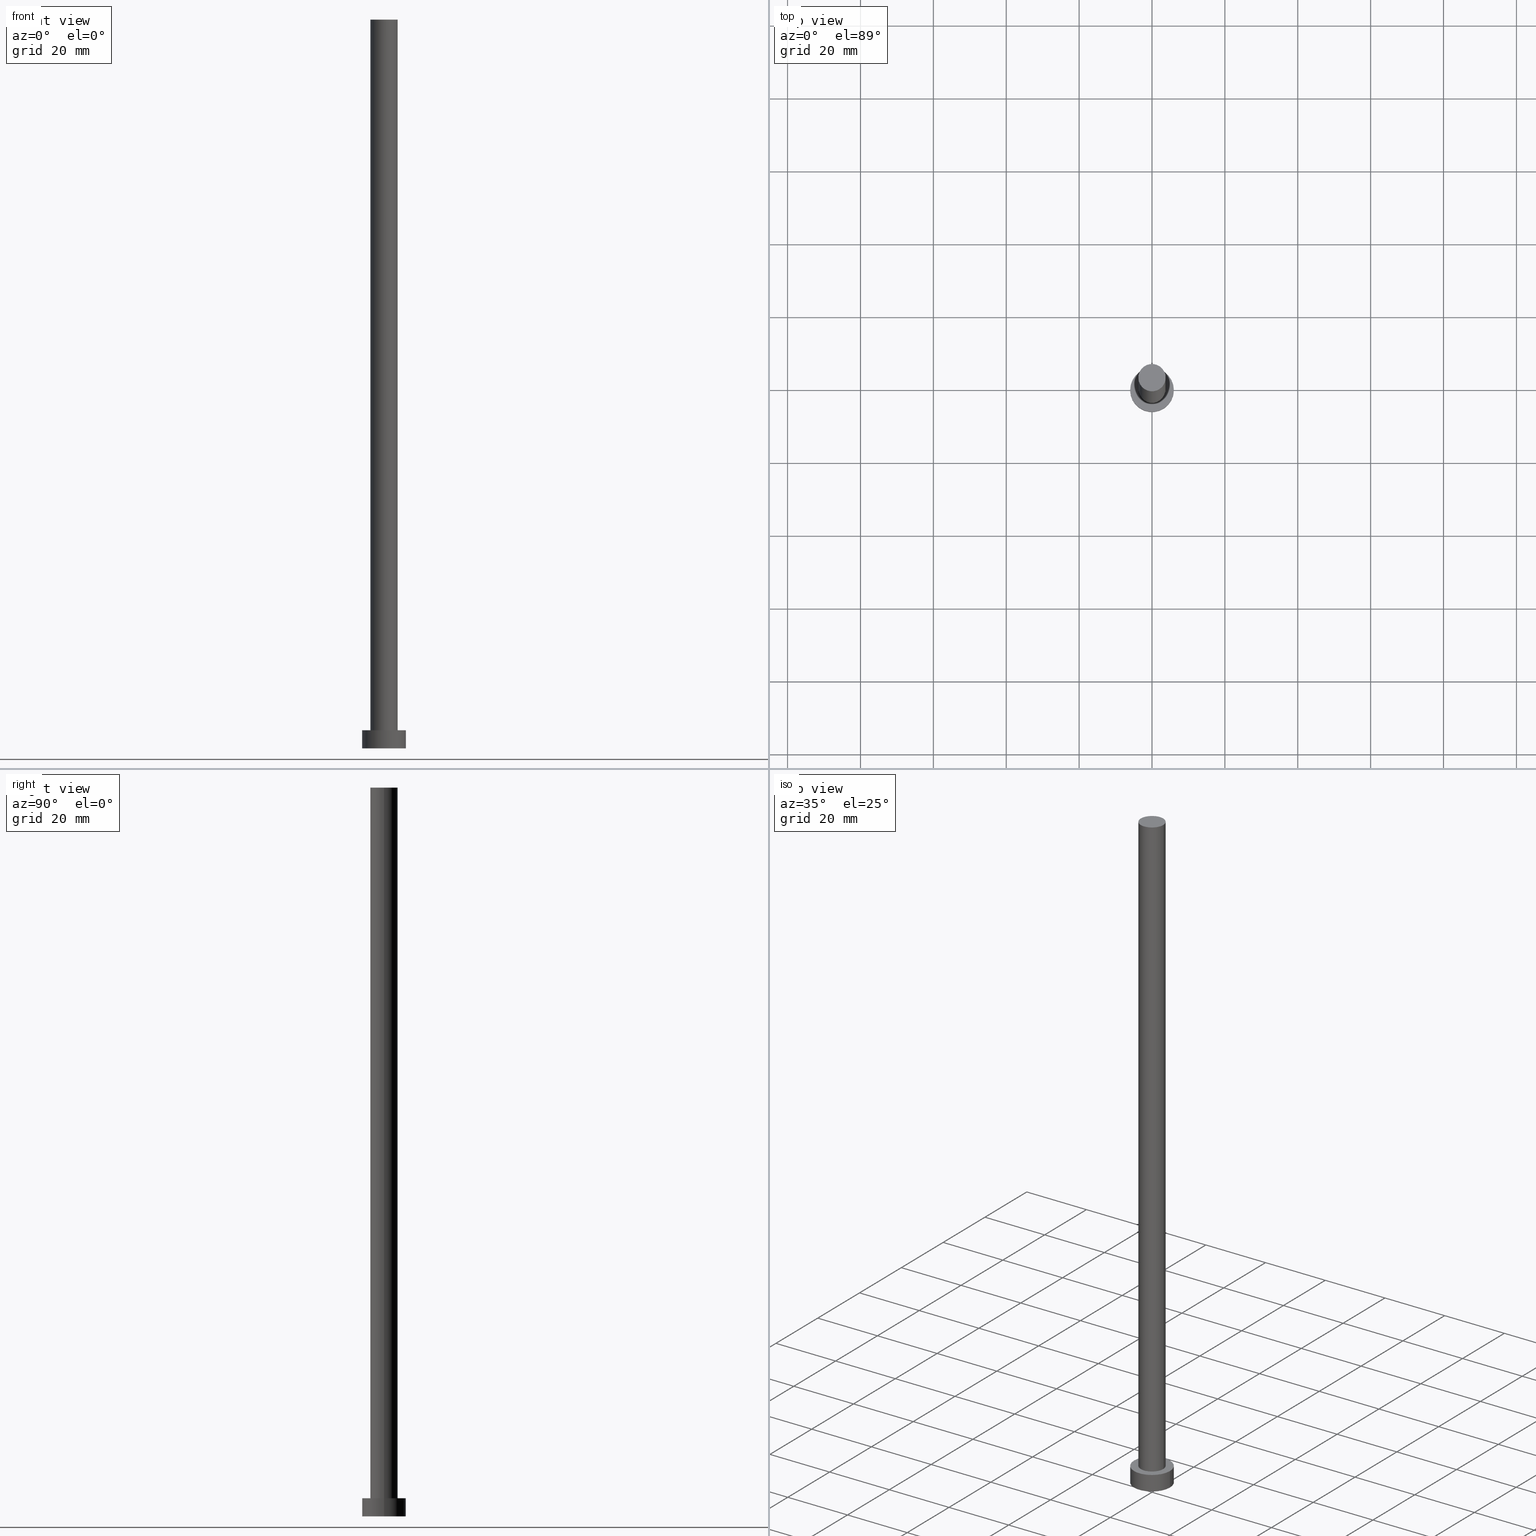
[diagram: canonical four-view strip — front | top / right | iso, engineering-drawing reading convention]
A machine part, canonical four-view strip (front | top / right | iso — engineering-drawing reading convention). The complete STEP part file that produces these views, byte-faithful:
ISO-10303-21;
HEADER;
FILE_DESCRIPTION (( 'STEP AP203' ),
    '1' );
FILE_NAME ('8db2.STEP',
    '2023-02-12T11:57:14',
    ( '' ),
    ( '' ),
    'SwSTEP 2.0',
    'SolidWorks 2019',
    '' );
FILE_SCHEMA (( 'CONFIG_CONTROL_DESIGN' ));
ENDSEC;

DATA;
#1 = APPROVAL_PERSON_ORGANIZATION ( #180, #246, #186 ) ;
#2 = CARTESIAN_POINT ( 'NONE',  ( 0.000000000000000000, 0.000000000000000000, 200.0000000000000000 ) ) ;
#3 = EDGE_CURVE ( 'NONE', #110, #224, #193, .T. ) ;
#4 = AXIS2_PLACEMENT_3D ( 'NONE', #131, #197, #26 ) ;
#5 = PERSON_AND_ORGANIZATION_ROLE ( 'creator' ) ;
#6 = APPROVAL_ROLE ( '' ) ;
#7 = APPROVAL_PERSON_ORGANIZATION ( #88, #249, #23 ) ;
#8 = PERSON_AND_ORGANIZATION ( #188, #220 ) ;
#9 = APPROVAL_STATUS ( 'not_yet_approved' ) ;
#10 = CYLINDRICAL_SURFACE ( 'NONE', #4, 6.000000000000000888 ) ;
#11 = EDGE_LOOP ( 'NONE', ( #106, #222, #241, #130 ) ) ;
#12 = DIRECTION ( 'NONE',  ( -0.000000000000000000, -0.000000000000000000, -1.000000000000000000 ) ) ;
#13 = ORIENTED_EDGE ( 'NONE', *, *, #105, .T. ) ;
#14 = APPROVAL ( #9, 'NEUR�EN�' ) ;
#15 = AXIS2_PLACEMENT_3D ( 'NONE', #242, #68, #184 ) ;
#16 = CARTESIAN_POINT ( 'NONE',  ( 0.000000000000000000, 0.000000000000000000, 5.000000000000000000 ) ) ;
#17 = FACE_OUTER_BOUND ( 'NONE', #82, .T. ) ;
#18 = PRODUCT ( '8db2', '8db2', '', ( #140 ) ) ;
#19 = CYLINDRICAL_SURFACE ( 'NONE', #198, 3.750000000000000000 ) ;
#20 = VECTOR ( 'NONE', #206, 1000.000000000000000 ) ;
#21 = CALENDAR_DATE ( 2023, 12, 2 ) ;
#22 = EDGE_LOOP ( 'NONE', ( #177, #65, #13, #48 ) ) ;
#23 = APPROVAL_ROLE ( '' ) ;
#24 = LOCAL_TIME ( 12, 57, 14.00000000000000000, #67 ) ;
#25 = DATE_AND_TIME ( #64, #24 ) ;
#26 = DIRECTION ( 'NONE',  ( -1.000000000000000000, 0.000000000000000000, 0.000000000000000000 ) ) ;
#27 = AXIS2_PLACEMENT_3D ( 'NONE', #123, #178, #194 ) ;
#28 = CARTESIAN_POINT ( 'NONE',  ( 0.000000000000000000, 0.000000000000000000, 0.000000000000000000 ) ) ;
#29 = DIRECTION ( 'NONE',  ( 0.000000000000000000, 0.000000000000000000, 1.000000000000000000 ) ) ;
#30 = EDGE_CURVE ( 'NONE', #59, #235, #176, .T. ) ;
#31 = AXIS2_PLACEMENT_3D ( 'NONE', #76, #154, #225 ) ;
#32 = ORIENTED_EDGE ( 'NONE', *, *, #142, .T. ) ;
#33 = DIRECTION ( 'NONE',  ( 0.000000000000000000, 0.000000000000000000, 1.000000000000000000 ) ) ;
#34 = DIRECTION ( 'NONE',  ( 1.000000000000000000, 0.000000000000000000, -0.000000000000000000 ) ) ;
#35 = APPLICATION_CONTEXT ( 'configuration controlled 3d designs of mechanical parts and assemblies' ) ;
#36 = EDGE_CURVE ( 'NONE', #110, #134, #210, .T. ) ;
#37 = PLANE ( 'NONE',  #231 ) ;
#38 = EDGE_LOOP ( 'NONE', ( #163, #238 ) ) ;
#39 = CARTESIAN_POINT ( 'NONE',  ( 0.000000000000000000, 0.000000000000000000, 200.0000000000000000 ) ) ;
#40 = FACE_OUTER_BOUND ( 'NONE', #152, .T. ) ;
#41 = PERSON_AND_ORGANIZATION ( #188, #220 ) ;
#42 =( GEOMETRIC_REPRESENTATION_CONTEXT ( 3 ) GLOBAL_UNCERTAINTY_ASSIGNED_CONTEXT ( ( #201 ) ) GLOBAL_UNIT_ASSIGNED_CONTEXT ( ( #77, #115, #252 ) ) REPRESENTATION_CONTEXT ( 'NONE', 'WORKASPACE' ) );
#43 = COORDINATED_UNIVERSAL_TIME_OFFSET ( 1, 0, .AHEAD. ) ;
#44 = ORIENTED_EDGE ( 'NONE', *, *, #109, .F. ) ;
#45 = DIRECTION ( 'NONE',  ( 0.000000000000000000, 0.000000000000000000, 1.000000000000000000 ) ) ;
#46 = CC_DESIGN_DATE_AND_TIME_ASSIGNMENT ( #69, #243, ( #205 ) ) ;
#47 = CALENDAR_DATE ( 2023, 12, 2 ) ;
#48 = ORIENTED_EDGE ( 'NONE', *, *, #149, .F. ) ;
#49 = CIRCLE ( 'NONE', #230, 6.000000000000000888 ) ;
#50 = ADVANCED_FACE ( 'NONE', ( #162 ), #37, .F. ) ;
#51 = CIRCLE ( 'NONE', #99, 6.000000000000000888 ) ;
#52 = EDGE_LOOP ( 'NONE', ( #245, #170, #87, #144 ) ) ;
#53 = LOCAL_TIME ( 12, 57, 14.00000000000000000, #95 ) ;
#54 = FACE_OUTER_BOUND ( 'NONE', #218, .T. ) ;
#55 = CARTESIAN_POINT ( 'NONE',  ( 6.000000000000000888, 7.347880794884120722E-16, 5.000000000000000000 ) ) ;
#56 = ADVANCED_FACE ( 'NONE', ( #17 ), #107, .T. ) ;
#57 = CYLINDRICAL_SURFACE ( 'NONE', #27, 6.000000000000000888 ) ;
#58 = VECTOR ( 'NONE', #139, 1000.000000000000000 ) ;
#59 = VERTEX_POINT ( 'NONE', #66 ) ;
#60 = DIRECTION ( 'NONE',  ( 1.000000000000000000, 0.000000000000000000, 0.000000000000000000 ) ) ;
#61 = VERTEX_POINT ( 'NONE', #126 ) ;
#62 = CC_DESIGN_SECURITY_CLASSIFICATION ( #155, ( #234 ) ) ;
#63 = VECTOR ( 'NONE', #133, 1000.000000000000000 ) ;
#64 = CALENDAR_DATE ( 2023, 12, 2 ) ;
#65 = ORIENTED_EDGE ( 'NONE', *, *, #36, .T. ) ;
#66 = CARTESIAN_POINT ( 'NONE',  ( 3.750000000000000000, 4.592425496802573972E-16, 200.0000000000000000 ) ) ;
#67 = COORDINATED_UNIVERSAL_TIME_OFFSET ( 1, 0, .AHEAD. ) ;
#68 = DIRECTION ( 'NONE',  ( 0.000000000000000000, 0.000000000000000000, 1.000000000000000000 ) ) ;
#69 = DATE_AND_TIME ( #47, #203 ) ;
#70 = CARTESIAN_POINT ( 'NONE',  ( 6.000000000000000888, 7.347880794884120722E-16, 5.000000000000000000 ) ) ;
#71 = DATE_TIME_ROLE ( 'classification_date' ) ;
#72 = FACE_OUTER_BOUND ( 'NONE', #22, .T. ) ;
#73 = DIRECTION ( 'NONE',  ( 0.000000000000000000, 0.000000000000000000, 1.000000000000000000 ) ) ;
#74 = CC_DESIGN_PERSON_AND_ORGANIZATION_ASSIGNMENT ( #8, #146, ( #155 ) ) ;
#75 = CARTESIAN_POINT ( 'NONE',  ( 0.000000000000000000, 0.000000000000000000, 5.000000000000000000 ) ) ;
#76 = CARTESIAN_POINT ( 'NONE',  ( 0.000000000000000000, 0.000000000000000000, 5.000000000000000000 ) ) ;
#77 =( LENGTH_UNIT ( ) NAMED_UNIT ( * ) SI_UNIT ( .MILLI., .METRE. ) );
#78 = ADVANCED_FACE ( 'NONE', ( #229 ), #57, .T. ) ;
#79 = DIRECTION ( 'NONE',  ( 0.000000000000000000, 0.000000000000000000, 1.000000000000000000 ) ) ;
#80 = ADVANCED_FACE ( 'NONE', ( #40 ), #19, .T. ) ;
#81 = APPROVAL_PERSON_ORGANIZATION ( #111, #14, #6 ) ;
#82 = EDGE_LOOP ( 'NONE', ( #92, #32 ) ) ;
#83 = VERTEX_POINT ( 'NONE', #84 ) ;
#84 = CARTESIAN_POINT ( 'NONE',  ( -3.750000000000000000, 0.000000000000000000, 5.000000000000000000 ) ) ;
#85 = CC_DESIGN_PERSON_AND_ORGANIZATION_ASSIGNMENT ( #86, #98, ( #18 ) ) ;
#86 = PERSON_AND_ORGANIZATION ( #188, #220 ) ;
#87 = ORIENTED_EDGE ( 'NONE', *, *, #149, .T. ) ;
#88 = PERSON_AND_ORGANIZATION ( #188, #220 ) ;
#89 = LINE ( 'NONE', #167, #63 ) ;
#90 = CALENDAR_DATE ( 2023, 12, 2 ) ;
#91 = VERTEX_POINT ( 'NONE', #236 ) ;
#92 = ORIENTED_EDGE ( 'NONE', *, *, #125, .T. ) ;
#93 = CARTESIAN_POINT ( 'NONE',  ( 6.000000000000000888, 7.347880794884120722E-16, 0.000000000000000000 ) ) ;
#94 = AXIS2_PLACEMENT_3D ( 'NONE', #39, #192, #211 ) ;
#95 = COORDINATED_UNIVERSAL_TIME_OFFSET ( 1, 0, .AHEAD. ) ;
#96 = DIRECTION ( 'NONE',  ( 0.000000000000000000, 0.000000000000000000, 1.000000000000000000 ) ) ;
#97 = APPLICATION_CONTEXT ( 'configuration controlled 3d designs of mechanical parts and assemblies' ) ;
#98 = PERSON_AND_ORGANIZATION_ROLE ( 'design_owner' ) ;
#99 = AXIS2_PLACEMENT_3D ( 'NONE', #16, #33, #199 ) ;
#100 = CC_DESIGN_PERSON_AND_ORGANIZATION_ASSIGNMENT ( #166, #5, ( #205 ) ) ;
#101 = DIRECTION ( 'NONE',  ( -1.000000000000000000, 0.000000000000000000, 0.000000000000000000 ) ) ;
#102 = CARTESIAN_POINT ( 'NONE',  ( 0.000000000000000000, 0.000000000000000000, 0.000000000000000000 ) ) ;
#103 = CIRCLE ( 'NONE', #209, 6.000000000000000888 ) ;
#104 = DIRECTION ( 'NONE',  ( 1.000000000000000000, 0.000000000000000000, 0.000000000000000000 ) ) ;
#105 = EDGE_CURVE ( 'NONE', #134, #91, #49, .T. ) ;
#106 = ORIENTED_EDGE ( 'NONE', *, *, #30, .F. ) ;
#107 = PLANE ( 'NONE',  #94 ) ;
#108 = CARTESIAN_POINT ( 'NONE',  ( 0.000000000000000000, 0.000000000000000000, 0.000000000000000000 ) ) ;
#109 = EDGE_CURVE ( 'NONE', #61, #83, #89, .T. ) ;
#110 = VERTEX_POINT ( 'NONE', #70 ) ;
#111 = PERSON_AND_ORGANIZATION ( #188, #220 ) ;
#112 = APPROVAL_DATE_TIME ( #127, #14 ) ;
#113 = ORIENTED_EDGE ( 'NONE', *, *, #151, .T. ) ;
#114 = CARTESIAN_POINT ( 'NONE',  ( 0.000000000000000000, 0.000000000000000000, 200.0000000000000000 ) ) ;
#115 =( NAMED_UNIT ( * ) PLANE_ANGLE_UNIT ( ) SI_UNIT ( $, .RADIAN. ) );
#116 = CIRCLE ( 'NONE', #200, 3.750000000000000000 ) ;
#117 = CARTESIAN_POINT ( 'NONE',  ( 0.000000000000000000, 0.000000000000000000, 5.000000000000000000 ) ) ;
#118 = CYLINDRICAL_SURFACE ( 'NONE', #124, 3.750000000000000000 ) ;
#119 = CC_DESIGN_APPROVAL ( #14, ( #155 ) ) ;
#120 = DIRECTION ( 'NONE',  ( 1.000000000000000000, 0.000000000000000000, -0.000000000000000000 ) ) ;
#121 = AXIS2_PLACEMENT_3D ( 'NONE', #114, #96, #248 ) ;
#122 = DIRECTION ( 'NONE',  ( 0.000000000000000000, 0.000000000000000000, 1.000000000000000000 ) ) ;
#123 = CARTESIAN_POINT ( 'NONE',  ( 0.000000000000000000, 0.000000000000000000, 5.000000000000000000 ) ) ;
#124 = AXIS2_PLACEMENT_3D ( 'NONE', #136, #12, #101 ) ;
#125 = EDGE_CURVE ( 'NONE', #61, #59, #237, .T. ) ;
#126 = CARTESIAN_POINT ( 'NONE',  ( -3.750000000000000000, 0.000000000000000000, 200.0000000000000000 ) ) ;
#127 = DATE_AND_TIME ( #90, #53 ) ;
#128 = PRODUCT_DEFINITION_SHAPE ( 'NONE', 'NONE',  #205 ) ;
#129 = AXIS2_PLACEMENT_3D ( 'NONE', #108, #161, #60 ) ;
#130 = ORIENTED_EDGE ( 'NONE', *, *, #239, .T. ) ;
#131 = CARTESIAN_POINT ( 'NONE',  ( 0.000000000000000000, 0.000000000000000000, 5.000000000000000000 ) ) ;
#132 = ORIENTED_EDGE ( 'NONE', *, *, #227, .T. ) ;
#133 = DIRECTION ( 'NONE',  ( -0.000000000000000000, -0.000000000000000000, -1.000000000000000000 ) ) ;
#134 = VERTEX_POINT ( 'NONE', #93 ) ;
#135 = DIRECTION ( 'NONE',  ( 0.000000000000000000, 0.000000000000000000, 1.000000000000000000 ) ) ;
#136 = CARTESIAN_POINT ( 'NONE',  ( 0.000000000000000000, 0.000000000000000000, 200.0000000000000000 ) ) ;
#137 = DIRECTION ( 'NONE',  ( -0.000000000000000000, -0.000000000000000000, -1.000000000000000000 ) ) ;
#138 = ADVANCED_FACE ( 'NONE', ( #72 ), #10, .T. ) ;
#139 = DIRECTION ( 'NONE',  ( -0.000000000000000000, -0.000000000000000000, -1.000000000000000000 ) ) ;
#140 = MECHANICAL_CONTEXT ( 'NONE', #97, 'mechanical' ) ;
#141 = ORIENTED_EDGE ( 'NONE', *, *, #3, .T. ) ;
#142 = EDGE_CURVE ( 'NONE', #59, #61, #159, .T. ) ;
#143 = APPROVAL_STATUS ( 'not_yet_approved' ) ;
#144 = ORIENTED_EDGE ( 'NONE', *, *, #179, .T. ) ;
#145 = PERSON_AND_ORGANIZATION_ROLE ( 'design_supplier' ) ;
#146 = PERSON_AND_ORGANIZATION_ROLE ( 'classification_officer' ) ;
#147 = DIRECTION ( 'NONE',  ( 1.000000000000000000, 0.000000000000000000, 0.000000000000000000 ) ) ;
#148 = APPROVAL_DATE_TIME ( #25, #246 ) ;
#149 = EDGE_CURVE ( 'NONE', #224, #91, #228, .T. ) ;
#150 = DATE_AND_TIME ( #221, #247 ) ;
#151 = EDGE_CURVE ( 'NONE', #224, #110, #51, .T. ) ;
#152 = EDGE_LOOP ( 'NONE', ( #232, #156, #132, #44 ) ) ;
#153 = ADVANCED_BREP_SHAPE_REPRESENTATION ( '8db2', ( #216, #129 ), #42 ) ;
#154 = DIRECTION ( 'NONE',  ( 0.000000000000000000, 0.000000000000000000, 1.000000000000000000 ) ) ;
#155 = SECURITY_CLASSIFICATION ( '', '', #214 ) ;
#156 = ORIENTED_EDGE ( 'NONE', *, *, #30, .T. ) ;
#157 = PLANE ( 'NONE',  #251 ) ;
#158 = CIRCLE ( 'NONE', #31, 3.750000000000000000 ) ;
#159 = CIRCLE ( 'NONE', #121, 3.750000000000000000 ) ;
#160 = CARTESIAN_POINT ( 'NONE',  ( 3.750000000000000000, 4.592425496802573972E-16, 200.0000000000000000 ) ) ;
#161 = DIRECTION ( 'NONE',  ( 0.000000000000000000, 0.000000000000000000, 1.000000000000000000 ) ) ;
#162 = FACE_OUTER_BOUND ( 'NONE', #164, .T. ) ;
#163 = ORIENTED_EDGE ( 'NONE', *, *, #239, .F. ) ;
#164 = EDGE_LOOP ( 'NONE', ( #183, #181 ) ) ;
#165 = CC_DESIGN_PERSON_AND_ORGANIZATION_ASSIGNMENT ( #41, #217, ( #234 ) ) ;
#166 = PERSON_AND_ORGANIZATION ( #188, #220 ) ;
#167 = CARTESIAN_POINT ( 'NONE',  ( -3.750000000000000000, 0.000000000000000000, 200.0000000000000000 ) ) ;
#168 = CC_DESIGN_APPROVAL ( #249, ( #234 ) ) ;
#169 = COORDINATED_UNIVERSAL_TIME_OFFSET ( 1, 0, .AHEAD. ) ;
#170 = ORIENTED_EDGE ( 'NONE', *, *, #151, .F. ) ;
#171 = PRODUCT_RELATED_PRODUCT_CATEGORY ( 'detail', '', ( #18 ) ) ;
#172 = FACE_OUTER_BOUND ( 'NONE', #11, .T. ) ;
#173 = DESIGN_CONTEXT ( 'detailed design', #35, 'design' ) ;
#174 = DIRECTION ( 'NONE',  ( 1.000000000000000000, 0.000000000000000000, 0.000000000000000000 ) ) ;
#175 = CC_DESIGN_APPROVAL ( #246, ( #205 ) ) ;
#176 = LINE ( 'NONE', #160, #58 ) ;
#177 = ORIENTED_EDGE ( 'NONE', *, *, #3, .F. ) ;
#178 = DIRECTION ( 'NONE',  ( -0.000000000000000000, -0.000000000000000000, -1.000000000000000000 ) ) ;
#179 = EDGE_CURVE ( 'NONE', #91, #134, #103, .T. ) ;
#180 = PERSON_AND_ORGANIZATION ( #188, #220 ) ;
#181 = ORIENTED_EDGE ( 'NONE', *, *, #105, .F. ) ;
#182 = SHAPE_DEFINITION_REPRESENTATION ( #128, #153 ) ;
#183 = ORIENTED_EDGE ( 'NONE', *, *, #179, .F. ) ;
#184 = DIRECTION ( 'NONE',  ( 1.000000000000000000, 0.000000000000000000, 0.000000000000000000 ) ) ;
#185 = DATE_AND_TIME ( #21, #226 ) ;
#186 = APPROVAL_ROLE ( '' ) ;
#187 = CARTESIAN_POINT ( 'NONE',  ( -6.000000000000000888, 0.000000000000000000, 5.000000000000000000 ) ) ;
#188 = PERSON ( 'NEUR�EN�', 'NEUR�EN�', 'NEUR�EN�', ('NEUR�EN�'), ('NEUR�EN�'), ('NEUR�EN�') ) ;
#189 = CARTESIAN_POINT ( 'NONE',  ( -6.000000000000000888, 0.000000000000000000, 5.000000000000000000 ) ) ;
#190 = CARTESIAN_POINT ( 'NONE',  ( 0.000000000000000000, 0.000000000000000000, 5.000000000000000000 ) ) ;
#191 = DIRECTION ( 'NONE',  ( 1.000000000000000000, 0.000000000000000000, 0.000000000000000000 ) ) ;
#192 = DIRECTION ( 'NONE',  ( 0.000000000000000000, 0.000000000000000000, 1.000000000000000000 ) ) ;
#193 = CIRCLE ( 'NONE', #212, 6.000000000000000888 ) ;
#194 = DIRECTION ( 'NONE',  ( -1.000000000000000000, 0.000000000000000000, 0.000000000000000000 ) ) ;
#195 = APPROVAL_STATUS ( 'not_yet_approved' ) ;
#196 = APPROVAL_DATE_TIME ( #150, #249 ) ;
#197 = DIRECTION ( 'NONE',  ( -0.000000000000000000, -0.000000000000000000, -1.000000000000000000 ) ) ;
#198 = AXIS2_PLACEMENT_3D ( 'NONE', #2, #137, #208 ) ;
#199 = DIRECTION ( 'NONE',  ( 1.000000000000000000, 0.000000000000000000, 0.000000000000000000 ) ) ;
#200 = AXIS2_PLACEMENT_3D ( 'NONE', #75, #79, #191 ) ;
#201 = UNCERTAINTY_MEASURE_WITH_UNIT (LENGTH_MEASURE( 1.000000000000000082E-05 ), #77, 'distance_accuracy_value', 'NONE');
#202 = FACE_BOUND ( 'NONE', #38, .T. ) ;
#203 = LOCAL_TIME ( 12, 57, 14.00000000000000000, #169 ) ;
#204 = CARTESIAN_POINT ( 'NONE',  ( 3.750000000000000000, 4.592425496802573972E-16, 5.000000000000000000 ) ) ;
#205 = PRODUCT_DEFINITION ( 'NEZN�M�', '', #234, #173 ) ;
#206 = DIRECTION ( 'NONE',  ( -0.000000000000000000, -0.000000000000000000, -1.000000000000000000 ) ) ;
#207 = CLOSED_SHELL ( 'NONE', ( #80, #138, #78, #254, #50, #223, #56 ) ) ;
#208 = DIRECTION ( 'NONE',  ( -1.000000000000000000, 0.000000000000000000, 0.000000000000000000 ) ) ;
#209 = AXIS2_PLACEMENT_3D ( 'NONE', #102, #135, #104 ) ;
#210 = LINE ( 'NONE', #55, #20 ) ;
#211 = DIRECTION ( 'NONE',  ( 1.000000000000000000, 0.000000000000000000, -0.000000000000000000 ) ) ;
#212 = AXIS2_PLACEMENT_3D ( 'NONE', #190, #73, #174 ) ;
#213 = COORDINATED_UNIVERSAL_TIME_OFFSET ( 1, 0, .AHEAD. ) ;
#214 = SECURITY_CLASSIFICATION_LEVEL ( 'unclassified' ) ;
#215 = CC_DESIGN_DATE_AND_TIME_ASSIGNMENT ( #185, #71, ( #155 ) ) ;
#216 = MANIFOLD_SOLID_BREP ( 'P�idat vysunut�m3', #207 ) ;
#217 = PERSON_AND_ORGANIZATION_ROLE ( 'creator' ) ;
#218 = EDGE_LOOP ( 'NONE', ( #113, #141 ) ) ;
#219 = VECTOR ( 'NONE', #250, 1000.000000000000000 ) ;
#220 = ORGANIZATION ( 'NEUR�EN�', 'NEUR�EN�', '' ) ;
#221 = CALENDAR_DATE ( 2023, 12, 2 ) ;
#222 = ORIENTED_EDGE ( 'NONE', *, *, #125, .F. ) ;
#223 = ADVANCED_FACE ( 'NONE', ( #172 ), #118, .T. ) ;
#224 = VERTEX_POINT ( 'NONE', #187 ) ;
#225 = DIRECTION ( 'NONE',  ( 1.000000000000000000, 0.000000000000000000, 0.000000000000000000 ) ) ;
#226 = LOCAL_TIME ( 12, 57, 14.00000000000000000, #43 ) ;
#227 = EDGE_CURVE ( 'NONE', #235, #83, #158, .T. ) ;
#228 = LINE ( 'NONE', #189, #219 ) ;
#229 = FACE_OUTER_BOUND ( 'NONE', #52, .T. ) ;
#230 = AXIS2_PLACEMENT_3D ( 'NONE', #28, #45, #147 ) ;
#231 = AXIS2_PLACEMENT_3D ( 'NONE', #233, #122, #120 ) ;
#232 = ORIENTED_EDGE ( 'NONE', *, *, #142, .F. ) ;
#233 = CARTESIAN_POINT ( 'NONE',  ( 0.000000000000000000, 0.000000000000000000, 0.000000000000000000 ) ) ;
#234 = PRODUCT_DEFINITION_FORMATION_WITH_SPECIFIED_SOURCE ( 'LIBOVOLN�', '', #18, .NOT_KNOWN. ) ;
#235 = VERTEX_POINT ( 'NONE', #204 ) ;
#236 = CARTESIAN_POINT ( 'NONE',  ( -6.000000000000000888, 0.000000000000000000, 0.000000000000000000 ) ) ;
#237 = CIRCLE ( 'NONE', #15, 3.750000000000000000 ) ;
#238 = ORIENTED_EDGE ( 'NONE', *, *, #227, .F. ) ;
#239 = EDGE_CURVE ( 'NONE', #83, #235, #116, .T. ) ;
#240 = PERSON_AND_ORGANIZATION ( #188, #220 ) ;
#241 = ORIENTED_EDGE ( 'NONE', *, *, #109, .T. ) ;
#242 = CARTESIAN_POINT ( 'NONE',  ( 0.000000000000000000, 0.000000000000000000, 200.0000000000000000 ) ) ;
#243 = DATE_TIME_ROLE ( 'creation_date' ) ;
#244 = APPLICATION_PROTOCOL_DEFINITION ( 'international standard', 'config_control_design', 1994, #35 ) ;
#245 = ORIENTED_EDGE ( 'NONE', *, *, #36, .F. ) ;
#246 = APPROVAL ( #195, 'NEUR�EN�' ) ;
#247 = LOCAL_TIME ( 12, 57, 14.00000000000000000, #213 ) ;
#248 = DIRECTION ( 'NONE',  ( 1.000000000000000000, 0.000000000000000000, 0.000000000000000000 ) ) ;
#249 = APPROVAL ( #143, 'NEUR�EN�' ) ;
#250 = DIRECTION ( 'NONE',  ( -0.000000000000000000, -0.000000000000000000, -1.000000000000000000 ) ) ;
#251 = AXIS2_PLACEMENT_3D ( 'NONE', #117, #29, #34 ) ;
#252 =( NAMED_UNIT ( * ) SI_UNIT ( $, .STERADIAN. ) SOLID_ANGLE_UNIT ( ) );
#253 = APPLICATION_PROTOCOL_DEFINITION ( 'international standard', 'config_control_design', 1994, #97 ) ;
#254 = ADVANCED_FACE ( 'NONE', ( #202, #54 ), #157, .T. ) ;
#255 = CC_DESIGN_PERSON_AND_ORGANIZATION_ASSIGNMENT ( #240, #145, ( #234 ) ) ;
ENDSEC;
END-ISO-10303-21;
